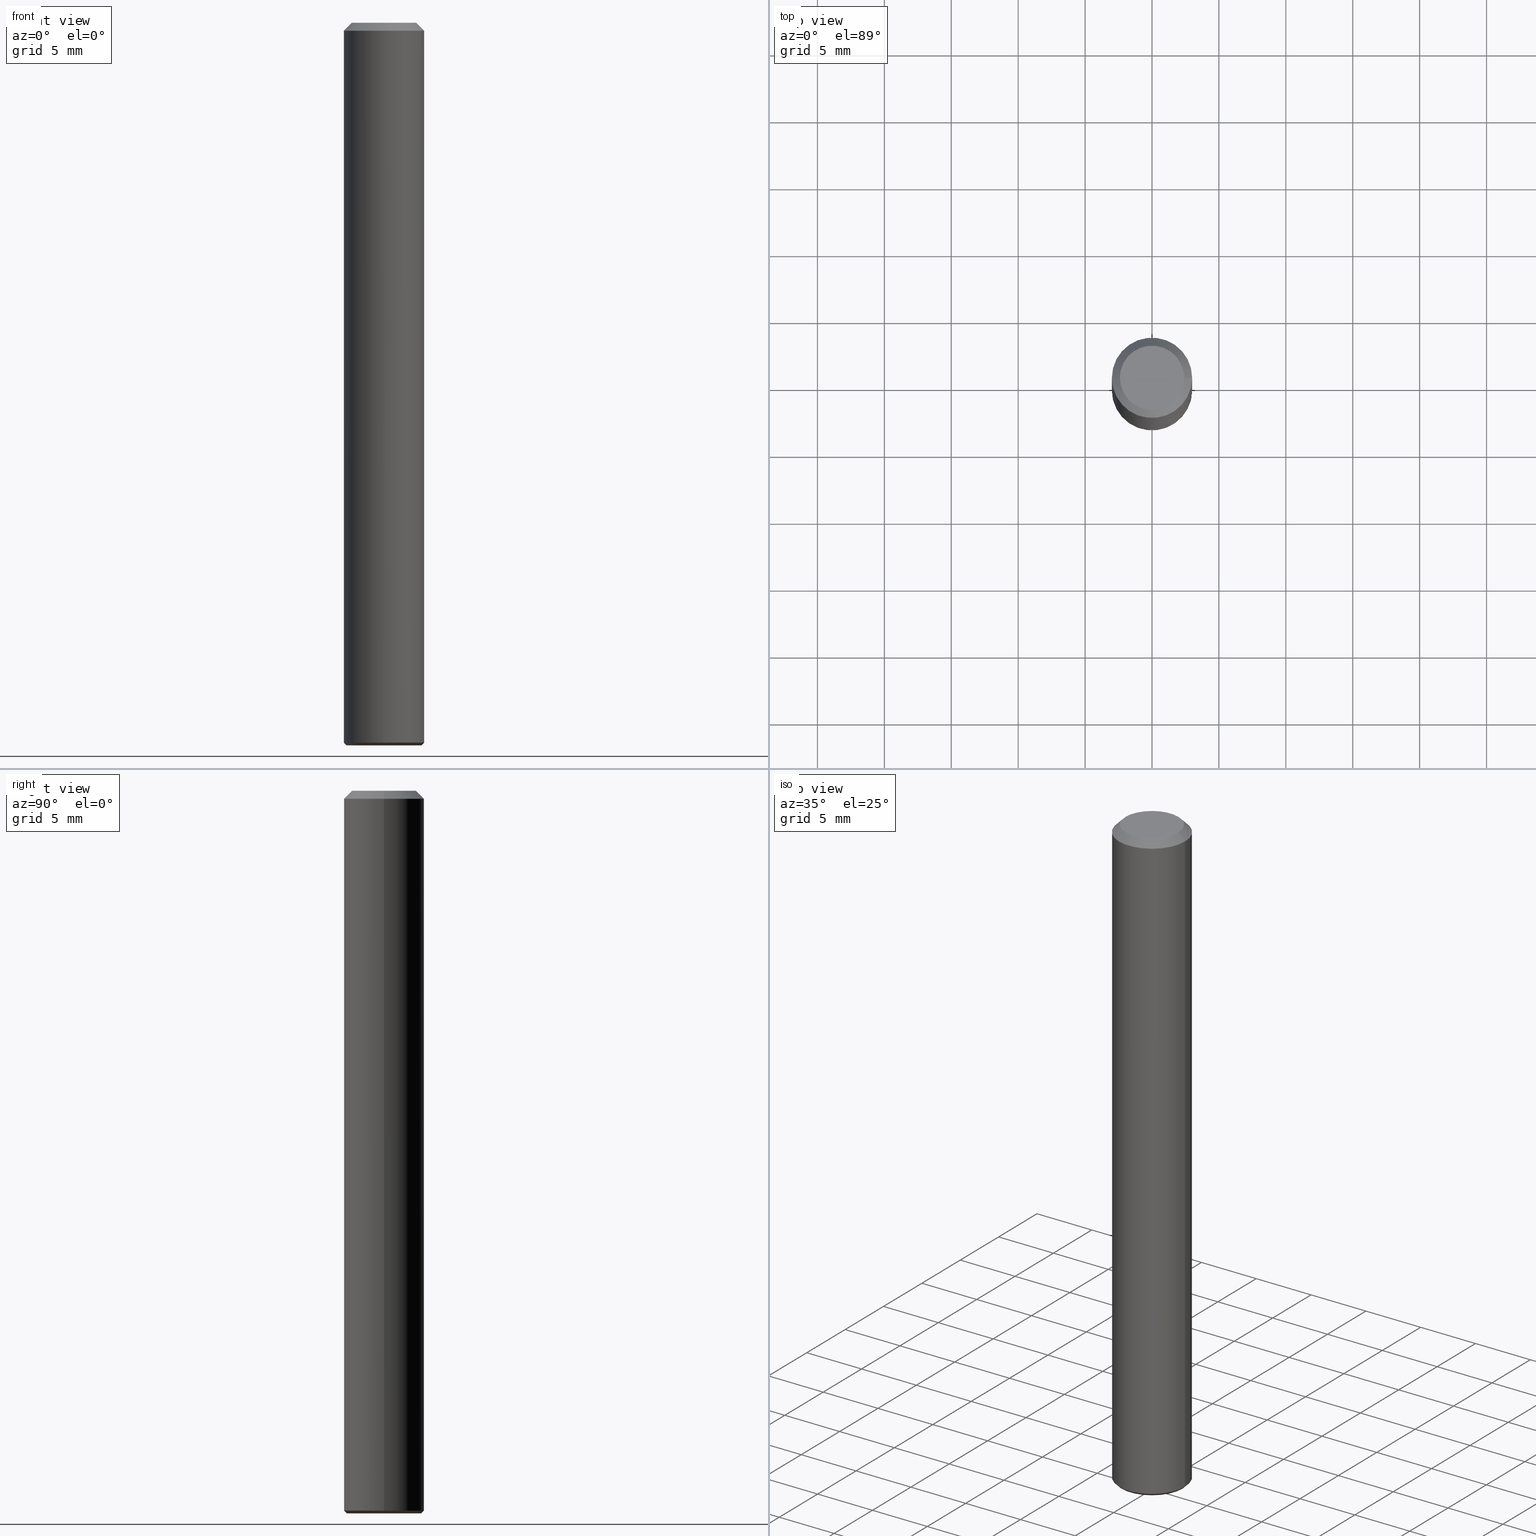
[diagram: canonical four-view strip — front | top / right | iso, engineering-drawing reading convention]
A machine part, canonical four-view strip (front | top / right | iso — engineering-drawing reading convention). The complete STEP part file that produces these views, byte-faithful:
ISO-10303-21;
HEADER;
FILE_DESCRIPTION (( 'STEP AP203' ),
    '1' );
FILE_NAME ('731.060.00.STEP',
    '2019-01-08T23:45:08',
    ( '' ),
    ( '' ),
    'SwSTEP 2.0',
    'SolidWorks 2019',
    '' );
FILE_SCHEMA (( 'CONFIG_CONTROL_DESIGN' ));
ENDSEC;

DATA;
#1 = VERTEX_POINT ( 'NONE', #211 ) ;
#2 = AXIS2_PLACEMENT_3D ( 'NONE', #49, #221, #31 ) ;
#3 = CC_DESIGN_DATE_AND_TIME_ASSIGNMENT ( #34, #144, ( #66 ) ) ;
#4 = MANIFOLD_SOLID_BREP ( 'K�rper in Z minus drehen[2]', #142 ) ;
#5 = LOCAL_TIME ( 0, 45, 8.000000000000000000, #19 ) ;
#6 = APPROVAL_DATE_TIME ( #83, #131 ) ;
#7 = ADVANCED_FACE ( 'NONE', ( #134, #133 ), #112, .T. ) ;
#8 = PRODUCT_DEFINITION_SHAPE ( 'NONE', 'NONE',  #66 ) ;
#9 = DIRECTION ( 'NONE',  ( -1.000000000000000000, 0.0000000000000000000, 6.982962677686266711E-15 ) ) ;
#10 = PERSON_AND_ORGANIZATION ( #109, #67 ) ;
#11 = CC_DESIGN_APPROVAL ( #125, ( #110 ) ) ;
#12 = CARTESIAN_POINT ( 'NONE',  ( -3.905110860399046871E-13, 0.0000000000000000000, -53.99999999999998579 ) ) ;
#13 = CARTESIAN_POINT ( 'NONE',  ( -3.072503578181957353E-13, 0.0000000000000000000, -44.00000000000000000 ) ) ;
#14 = CARTESIAN_POINT ( 'NONE',  ( 0.0000000000000000000, 0.0000000000000000000, 0.0000000000000000000 ) ) ;
#15 = VERTEX_POINT ( 'NONE', #17 ) ;
#16 = DIRECTION ( 'NONE',  ( 6.982962677686266711E-15, 0.0000000000000000000, 1.000000000000000000 ) ) ;
#17 = CARTESIAN_POINT ( 'NONE',  ( -2.800000000000400835, 0.0000000000000000000, -53.99999999999996447 ) ) ;
#18 = DIRECTION ( 'NONE',  ( 1.000000000000000000, 0.0000000000000000000, -6.975033976323412122E-15 ) ) ;
#19 = COORDINATED_UNIVERSAL_TIME_OFFSET ( 1, 0, .AHEAD. ) ;
#20 = APPROVAL_STATUS ( 'not_yet_approved' ) ;
#21 = DIRECTION ( 'NONE',  ( 1.000000000000000000, 0.0000000000000000000, 0.0000000000000000000 ) ) ;
#22 = PERSON_AND_ORGANIZATION ( #109, #67 ) ;
#23 = EDGE_LOOP ( 'NONE', ( #183 ) ) ;
#24 = ADVANCED_BREP_SHAPE_REPRESENTATION ( '731.060.00', ( #153, #4, #172 ), #91 ) ;
#25 = FACE_OUTER_BOUND ( 'NONE', #119, .T. ) ;
#26 = LOCAL_TIME ( 0, 45, 8.000000000000000000, #217 ) ;
#27 = FACE_OUTER_BOUND ( 'NONE', #194, .T. ) ;
#28 = AXIS2_PLACEMENT_3D ( 'NONE', #104, #205, #155 ) ;
#29 = CARTESIAN_POINT ( 'NONE',  ( -7.712954277769347036E-31, 0.0000000000000000000, -1.104538951986058046E-16 ) ) ;
#30 = CC_DESIGN_DATE_AND_TIME_ASSIGNMENT ( #118, #57, ( #110 ) ) ;
#31 = DIRECTION ( 'NONE',  ( 1.000000000000000000, 0.0000000000000000000, -7.197266195779313514E-15 ) ) ;
#32 = DIRECTION ( 'NONE',  ( 0.0000000000000000000, 0.0000000000000000000, 1.000000000000000000 ) ) ;
#33 = APPLICATION_CONTEXT ( 'configuration controlled 3d designs of mechanical parts and assemblies' ) ;
#34 = DATE_AND_TIME ( #161, #98 ) ;
#35 = DATE_AND_TIME ( #193, #166 ) ;
#36 = ORIENTED_EDGE ( 'NONE', *, *, #135, .T. ) ;
#37 = APPROVAL ( #20, 'UNSPECIFIED' ) ;
#38 = ORIENTED_EDGE ( 'NONE', *, *, #89, .F. ) ;
#39 = SHAPE_DEFINITION_REPRESENTATION ( #8, #24 ) ;
#40 = CLOSED_SHELL ( 'NONE', ( #209, #170, #113, #201 ) ) ;
#41 = DIRECTION ( 'NONE',  ( -6.982962677686267499E-15, -0.0000000000000000000, -1.000000000000000000 ) ) ;
#42 = PERSON_AND_ORGANIZATION ( #109, #67 ) ;
#43 = CARTESIAN_POINT ( 'NONE',  ( -3.888448837163500454E-13, 0.0000000000000000000, -53.80000000000000426 ) ) ;
#44 = APPROVAL_PERSON_ORGANIZATION ( #213, #131, #147 ) ;
#45 = PERSON_AND_ORGANIZATION_ROLE ( 'design_supplier' ) ;
#46 = CIRCLE ( 'NONE', #175, 2.800000000000010481 ) ;
#47 = PLANE ( 'NONE',  #87 ) ;
#48 = DIRECTION ( 'NONE',  ( -1.000000000000000000, 0.0000000000000000000, 6.982962677686266711E-15 ) ) ;
#49 = CARTESIAN_POINT ( 'NONE',  ( -3.905110860399047881E-13, 0.0000000000000000000, -54.00000000000000000 ) ) ;
#50 = COORDINATED_UNIVERSAL_TIME_OFFSET ( 1, 0, .AHEAD. ) ;
#51 = PERSON_AND_ORGANIZATION ( #109, #67 ) ;
#52 = EDGE_LOOP ( 'NONE', ( #145 ) ) ;
#53 = EDGE_LOOP ( 'NONE', ( #36 ) ) ;
#54 = AXIS2_PLACEMENT_3D ( 'NONE', #29, #123, #101 ) ;
#55 = CARTESIAN_POINT ( 'NONE',  ( -3.905110860399046871E-13, 0.0000000000000000000, -53.99999999999998579 ) ) ;
#56 = APPLICATION_CONTEXT ( 'configuration controlled 3d designs of mechanical parts and assemblies' ) ;
#57 = DATE_TIME_ROLE ( 'classification_date' ) ;
#58 = CONICAL_SURFACE ( 'NONE', #152, 2.800000000000010481, 0.7853981633975101184 ) ;
#59 = CARTESIAN_POINT ( 'NONE',  ( -3.072503578181957353E-13, 0.0000000000000000000, -44.00000000000000000 ) ) ;
#60 = CC_DESIGN_PERSON_AND_ORGANIZATION_ASSIGNMENT ( #212, #192, ( #66 ) ) ;
#61 = VERTEX_POINT ( 'NONE', #158 ) ;
#62 = CYLINDRICAL_SURFACE ( 'NONE', #28, 3.000000000000006217 ) ;
#63 = EDGE_CURVE ( 'NONE', #189, #189, #74, .T. ) ;
#64 = UNCERTAINTY_MEASURE_WITH_UNIT (LENGTH_MEASURE( 1.000000000000000082E-05 ), #124, 'distance_accuracy_value', 'NONE');
#65 = AXIS2_PLACEMENT_3D ( 'NONE', #14, #188, #103 ) ;
#66 = PRODUCT_DEFINITION ( 'UNKNOWN', '', #116, #156 ) ;
#67 = ORGANIZATION ( 'UNSPECIFIED', 'UNSPECIFIED', '' ) ;
#68 = EDGE_LOOP ( 'NONE', ( #163 ) ) ;
#69 = ORIENTED_EDGE ( 'NONE', *, *, #76, .T. ) ;
#70 = DIRECTION ( 'NONE',  ( -8.331011617774372690E-15, 0.0000000000000000000, -1.000000000000000000 ) ) ;
#71 = APPROVAL_DATE_TIME ( #35, #37 ) ;
#72 = DIRECTION ( 'NONE',  ( -6.982962677686266711E-15, 0.0000000000000000000, -1.000000000000000000 ) ) ;
#73 = CALENDAR_DATE ( 2019, 9, 1 ) ;
#74 = CIRCLE ( 'NONE', #168, 3.000000000000012879 ) ;
#75 = DIRECTION ( 'NONE',  ( 8.331011617774372690E-15, 0.0000000000000000000, 1.000000000000000000 ) ) ;
#76 = EDGE_CURVE ( 'NONE', #173, #173, #143, .T. ) ;
#77 = APPROVAL_ROLE ( '' ) ;
#78 = DIRECTION ( 'NONE',  ( -6.982962677686266711E-15, 0.0000000000000000000, -1.000000000000000000 ) ) ;
#79 = DIRECTION ( 'NONE',  ( 6.982962677686266711E-15, 0.0000000000000000000, 1.000000000000000000 ) ) ;
#80 = CARTESIAN_POINT ( 'NONE',  ( 2.999999999999698908, 0.0000000000000000000, -44.00000000000002132 ) ) ;
#81 = CARTESIAN_POINT ( 'NONE',  ( -3.770799845950584024E-13, 0.0000000000000000000, -54.00000000000000000 ) ) ;
#82 = FACE_OUTER_BOUND ( 'NONE', #53, .T. ) ;
#83 = DATE_AND_TIME ( #126, #5 ) ;
#84 = APPROVAL_ROLE ( '' ) ;
#85 = AXIS2_PLACEMENT_3D ( 'NONE', #202, #72, #9 ) ;
#86 = AXIS2_PLACEMENT_3D ( 'NONE', #81, #79, #136 ) ;
#87 = AXIS2_PLACEMENT_3D ( 'NONE', #59, #122, #48 ) ;
#88 = ORIENTED_EDGE ( 'NONE', *, *, #76, .F. ) ;
#89 = EDGE_CURVE ( 'NONE', #15, #15, #46, .T. ) ;
#90 = EDGE_LOOP ( 'NONE', ( #196 ) ) ;
#91 =( GEOMETRIC_REPRESENTATION_CONTEXT ( 3 ) GLOBAL_UNCERTAINTY_ASSIGNED_CONTEXT ( ( #64 ) ) GLOBAL_UNIT_ASSIGNED_CONTEXT ( ( #124, #191, #176 ) ) REPRESENTATION_CONTEXT ( 'NONE', 'WORKASPACE' ) );
#92 = DATE_AND_TIME ( #132, #26 ) ;
#93 = CC_DESIGN_PERSON_AND_ORGANIZATION_ASSIGNMENT ( #42, #96, ( #110 ) ) ;
#94 = EDGE_LOOP ( 'NONE', ( #88 ) ) ;
#95 = AXIS2_PLACEMENT_3D ( 'NONE', #13, #78, #184 ) ;
#96 = PERSON_AND_ORGANIZATION_ROLE ( 'classification_officer' ) ;
#97 = PLANE ( 'NONE',  #95 ) ;
#98 = LOCAL_TIME ( 0, 45, 8.000000000000000000, #215 ) ;
#99 = FACE_OUTER_BOUND ( 'NONE', #68, .T. ) ;
#100 = APPROVAL_PERSON_ORGANIZATION ( #22, #125, #77 ) ;
#101 = DIRECTION ( 'NONE',  ( 1.000000000000000000, 0.0000000000000000000, -6.982962677686266711E-15 ) ) ;
#102 = AXIS2_PLACEMENT_3D ( 'NONE', #200, #41, #180 ) ;
#103 = DIRECTION ( 'NONE',  ( 1.000000000000000000, 0.0000000000000000000, -6.982962677686266711E-15 ) ) ;
#104 = CARTESIAN_POINT ( 'NONE',  ( -3.770799845950584024E-13, 0.0000000000000000000, -54.00000000000000000 ) ) ;
#105 = EDGE_CURVE ( 'NONE', #139, #139, #121, .T. ) ;
#106 = CARTESIAN_POINT ( 'NONE',  ( -4.189777606611783692E-15, 0.0000000000000000000, -0.6000000000000033085 ) ) ;
#107 = APPROVAL_STATUS ( 'not_yet_approved' ) ;
#108 = PERSON_AND_ORGANIZATION ( #109, #67 ) ;
#109 = PERSON ( 'UNSPECIFIED', 'UNSPECIFIED', 'UNSPECIFIED', ('UNSPECIFIED'), ('UNSPECIFIED'), ('UNSPECIFIED') ) ;
#110 = SECURITY_CLASSIFICATION ( '', '', #150 ) ;
#111 = EDGE_LOOP ( 'NONE', ( #182 ) ) ;
#112 = CONICAL_SURFACE ( 'NONE', #85, 2.399999999999998135, 0.7853981633974472798 ) ;
#113 = ADVANCED_FACE ( 'NONE', ( #25, #167 ), #58, .T. ) ;
#114 = CARTESIAN_POINT ( 'NONE',  ( -3.072503578181957353E-13, 0.0000000000000000000, -44.00000000000000000 ) ) ;
#115 = DIRECTION ( 'NONE',  ( -6.982962677686267499E-15, -0.0000000000000000000, -1.000000000000000000 ) ) ;
#116 = PRODUCT_DEFINITION_FORMATION_WITH_SPECIFIED_SOURCE ( 'ANY', '', #195, .NOT_KNOWN. ) ;
#117 = DIRECTION ( 'NONE',  ( -8.331011617774372690E-15, 0.0000000000000000000, -1.000000000000000000 ) ) ;
#118 = DATE_AND_TIME ( #73, #151 ) ;
#119 = EDGE_LOOP ( 'NONE', ( #203 ) ) ;
#120 = CC_DESIGN_APPROVAL ( #37, ( #116 ) ) ;
#121 = CIRCLE ( 'NONE', #169, 3.000000000000006217 ) ;
#122 = DIRECTION ( 'NONE',  ( -6.982962677686266711E-15, 0.0000000000000000000, -1.000000000000000000 ) ) ;
#123 = DIRECTION ( 'NONE',  ( 6.982962677686266711E-15, 0.0000000000000000000, 1.000000000000000000 ) ) ;
#124 =( LENGTH_UNIT ( ) NAMED_UNIT ( * ) SI_UNIT ( .MILLI., .METRE. ) );
#125 = APPROVAL ( #164, 'UNSPECIFIED' ) ;
#126 = CALENDAR_DATE ( 2019, 9, 1 ) ;
#127 = PERSON_AND_ORGANIZATION_ROLE ( 'design_owner' ) ;
#128 = CIRCLE ( 'NONE', #198, 3.000000000000000000 ) ;
#129 = ADVANCED_FACE ( 'NONE', ( #27 ), #97, .T. ) ;
#130 = EDGE_LOOP ( 'NONE', ( #149 ) ) ;
#131 = APPROVAL ( #107, 'UNSPECIFIED' ) ;
#132 = CALENDAR_DATE ( 2019, 9, 1 ) ;
#133 = FACE_BOUND ( 'NONE', #162, .T. ) ;
#134 = FACE_OUTER_BOUND ( 'NONE', #23, .T. ) ;
#135 = EDGE_CURVE ( 'NONE', #61, #61, #178, .T. ) ;
#136 = DIRECTION ( 'NONE',  ( 1.000000000000000000, 0.0000000000000000000, -6.938893903907214178E-15 ) ) ;
#137 = FACE_OUTER_BOUND ( 'NONE', #111, .T. ) ;
#138 = CC_DESIGN_SECURITY_CLASSIFICATION ( #110, ( #116 ) ) ;
#139 = VERTEX_POINT ( 'NONE', #80 ) ;
#140 = CC_DESIGN_PERSON_AND_ORGANIZATION_ASSIGNMENT ( #10, #45, ( #116 ) ) ;
#141 = APPLICATION_PROTOCOL_DEFINITION ( 'international standard', 'config_control_design', 1994, #33 ) ;
#142 = CLOSED_SHELL ( 'NONE', ( #154, #223, #7, #129 ) ) ;
#143 = CIRCLE ( 'NONE', #102, 3.000000000000006217 ) ;
#144 = DATE_TIME_ROLE ( 'creation_date' ) ;
#145 = ORIENTED_EDGE ( 'NONE', *, *, #63, .F. ) ;
#146 = EDGE_CURVE ( 'NONE', #1, #1, #128, .T. ) ;
#147 = APPROVAL_ROLE ( '' ) ;
#148 = PERSON_AND_ORGANIZATION ( #109, #67 ) ;
#149 = ORIENTED_EDGE ( 'NONE', *, *, #105, .F. ) ;
#150 = SECURITY_CLASSIFICATION_LEVEL ( 'unclassified' ) ;
#151 = LOCAL_TIME ( 0, 45, 8.000000000000000000, #218 ) ;
#152 = AXIS2_PLACEMENT_3D ( 'NONE', #12, #75, #219 ) ;
#153 = MANIFOLD_SOLID_BREP ( 'K�rper in Z minus drehen[1]', #40 ) ;
#154 = ADVANCED_FACE ( 'NONE', ( #210, #99 ), #171, .T. ) ;
#155 = DIRECTION ( 'NONE',  ( 1.000000000000000000, 0.0000000000000000000, -6.938893903907214178E-15 ) ) ;
#156 = DESIGN_CONTEXT ( 'detailed design', #56, 'design' ) ;
#157 = FACE_OUTER_BOUND ( 'NONE', #52, .T. ) ;
#158 = CARTESIAN_POINT ( 'NONE',  ( 2.399999999999998135, 0.0000000000000000000, -1.675911042644702748E-14 ) ) ;
#159 = CARTESIAN_POINT ( 'NONE',  ( 0.0000000000000000000, 0.0000000000000000000, 0.0000000000000000000 ) ) ;
#160 = CC_DESIGN_PERSON_AND_ORGANIZATION_ASSIGNMENT ( #51, #127, ( #195 ) ) ;
#161 = CALENDAR_DATE ( 2019, 9, 1 ) ;
#162 = EDGE_LOOP ( 'NONE', ( #165 ) ) ;
#163 = ORIENTED_EDGE ( 'NONE', *, *, #146, .F. ) ;
#164 = APPROVAL_STATUS ( 'not_yet_approved' ) ;
#165 = ORIENTED_EDGE ( 'NONE', *, *, #135, .F. ) ;
#166 = LOCAL_TIME ( 0, 45, 8.000000000000000000, #50 ) ;
#167 = FACE_BOUND ( 'NONE', #177, .T. ) ;
#168 = AXIS2_PLACEMENT_3D ( 'NONE', #43, #70, #216 ) ;
#169 = AXIS2_PLACEMENT_3D ( 'NONE', #114, #115, #179 ) ;
#170 = ADVANCED_FACE ( 'NONE', ( #157, #137 ), #62, .T. ) ;
#171 = CYLINDRICAL_SURFACE ( 'NONE', #86, 3.000000000000006217 ) ;
#172 = AXIS2_PLACEMENT_3D ( 'NONE', #159, #32, #21 ) ;
#173 = VERTEX_POINT ( 'NONE', #190 ) ;
#174 = APPLICATION_PROTOCOL_DEFINITION ( 'international standard', 'config_control_design', 1994, #56 ) ;
#175 = AXIS2_PLACEMENT_3D ( 'NONE', #55, #117, #197 ) ;
#176 =( NAMED_UNIT ( * ) SI_UNIT ( $, .STERADIAN. ) SOLID_ANGLE_UNIT ( ) );
#177 = EDGE_LOOP ( 'NONE', ( #38 ) ) ;
#178 = CIRCLE ( 'NONE', #65, 2.399999999999998135 ) ;
#179 = DIRECTION ( 'NONE',  ( 1.000000000000000000, 0.0000000000000000000, -6.938893903907214178E-15 ) ) ;
#180 = DIRECTION ( 'NONE',  ( 1.000000000000000000, 0.0000000000000000000, -6.938893903907214178E-15 ) ) ;
#181 = PERSON_AND_ORGANIZATION_ROLE ( 'creator' ) ;
#182 = ORIENTED_EDGE ( 'NONE', *, *, #105, .T. ) ;
#183 = ORIENTED_EDGE ( 'NONE', *, *, #146, .T. ) ;
#184 = DIRECTION ( 'NONE',  ( -1.000000000000000000, 0.0000000000000000000, 6.982962677686266711E-15 ) ) ;
#185 = CC_DESIGN_APPROVAL ( #131, ( #66 ) ) ;
#186 = PRODUCT_RELATED_PRODUCT_CATEGORY ( 'detail', '', ( #195 ) ) ;
#187 = PLANE ( 'NONE',  #54 ) ;
#188 = DIRECTION ( 'NONE',  ( 6.982962677686266711E-15, 0.0000000000000000000, 1.000000000000000000 ) ) ;
#189 = VERTEX_POINT ( 'NONE', #207 ) ;
#190 = CARTESIAN_POINT ( 'NONE',  ( 2.999999999999698908, 0.0000000000000000000, -44.00000000000002132 ) ) ;
#191 =( NAMED_UNIT ( * ) PLANE_ANGLE_UNIT ( ) SI_UNIT ( $, .RADIAN. ) );
#192 = PERSON_AND_ORGANIZATION_ROLE ( 'creator' ) ;
#193 = CALENDAR_DATE ( 2019, 9, 1 ) ;
#194 = EDGE_LOOP ( 'NONE', ( #69 ) ) ;
#195 = PRODUCT ( '731.060.00', '731.060.00', '', ( #214 ) ) ;
#196 = ORIENTED_EDGE ( 'NONE', *, *, #89, .T. ) ;
#197 = DIRECTION ( 'NONE',  ( -1.000000000000000000, 0.0000000000000000000, 7.434529182757717193E-15 ) ) ;
#198 = AXIS2_PLACEMENT_3D ( 'NONE', #106, #16, #18 ) ;
#199 = APPROVAL_DATE_TIME ( #92, #125 ) ;
#200 = CARTESIAN_POINT ( 'NONE',  ( -3.072503578181957353E-13, 0.0000000000000000000, -44.00000000000000000 ) ) ;
#201 = ADVANCED_FACE ( 'NONE', ( #222 ), #206, .F. ) ;
#202 = CARTESIAN_POINT ( 'NONE',  ( 0.0000000000000000000, 0.0000000000000000000, 0.0000000000000000000 ) ) ;
#203 = ORIENTED_EDGE ( 'NONE', *, *, #63, .T. ) ;
#204 = CC_DESIGN_PERSON_AND_ORGANIZATION_ASSIGNMENT ( #148, #181, ( #116 ) ) ;
#205 = DIRECTION ( 'NONE',  ( 6.982962677686266711E-15, 0.0000000000000000000, 1.000000000000000000 ) ) ;
#206 = PLANE ( 'NONE',  #2 ) ;
#207 = CARTESIAN_POINT ( 'NONE',  ( -3.000000000000401901, 0.0000000000000000000, -53.79999999999998295 ) ) ;
#208 = FACE_OUTER_BOUND ( 'NONE', #130, .T. ) ;
#209 = ADVANCED_FACE ( 'NONE', ( #208 ), #47, .F. ) ;
#210 = FACE_OUTER_BOUND ( 'NONE', #94, .T. ) ;
#211 = CARTESIAN_POINT ( 'NONE',  ( 2.999999999999995559, 0.0000000000000000000, -0.6000000000000241807 ) ) ;
#212 = PERSON_AND_ORGANIZATION ( #109, #67 ) ;
#213 = PERSON_AND_ORGANIZATION ( #109, #67 ) ;
#214 = MECHANICAL_CONTEXT ( 'NONE', #33, 'mechanical' ) ;
#215 = COORDINATED_UNIVERSAL_TIME_OFFSET ( 1, 0, .AHEAD. ) ;
#216 = DIRECTION ( 'NONE',  ( -1.000000000000000000, 0.0000000000000000000, 9.251858538542931201E-15 ) ) ;
#217 = COORDINATED_UNIVERSAL_TIME_OFFSET ( 1, 0, .AHEAD. ) ;
#218 = COORDINATED_UNIVERSAL_TIME_OFFSET ( 1, 0, .AHEAD. ) ;
#219 = DIRECTION ( 'NONE',  ( 1.000000000000000000, 0.0000000000000000000, -7.434529182757717193E-15 ) ) ;
#220 = APPROVAL_PERSON_ORGANIZATION ( #108, #37, #84 ) ;
#221 = DIRECTION ( 'NONE',  ( 7.197266195779313514E-15, -0.0000000000000000000, 1.000000000000000000 ) ) ;
#222 = FACE_OUTER_BOUND ( 'NONE', #90, .T. ) ;
#223 = ADVANCED_FACE ( 'NONE', ( #82 ), #187, .T. ) ;
ENDSEC;
END-ISO-10303-21;
15439